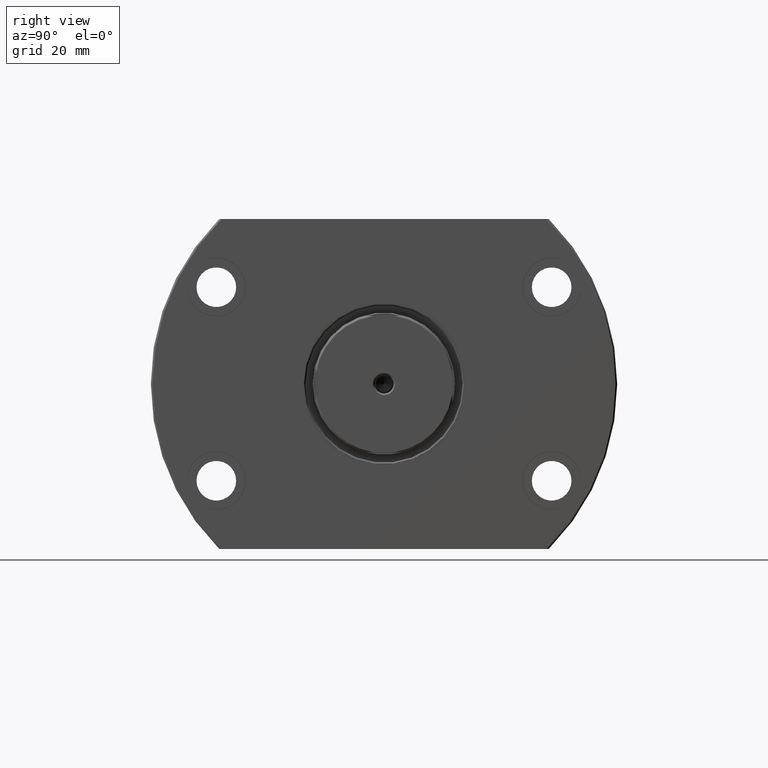
[diagram: clean part render]
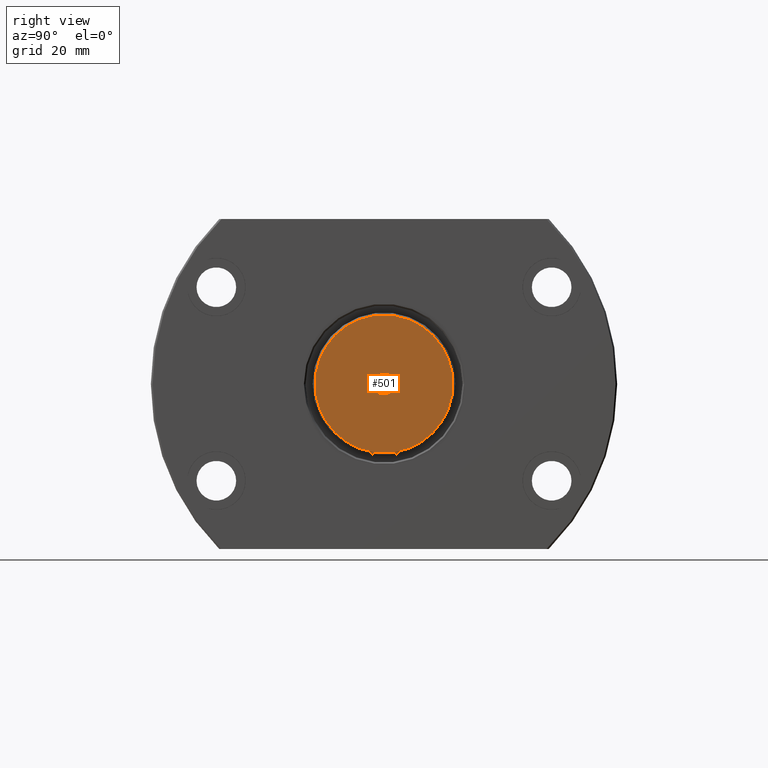
[diagram: same view with one face highlighted and labeled with its STEP entity id]
A machine part, right view. The second image highlights one B-rep face of the part: STEP entity #501.
In plain terms, the highlighted planar face has unit normal (-1, -0, 0).
Its self-contained STEP definition (entity closure, byte-faithful):
#5 = ORIENTED_EDGE ( 'NONE', *, *, #1656, .T. ) ;
#17 = EDGE_LOOP ( 'NONE', ( #2737, #5, #1064, #133, #1994, #2754, #3151, #2663 ) ) ;
#26 = LINE ( 'NONE', #2769, #490 ) ;
#35 = DIRECTION ( 'NONE',  ( 0.000000000000000000, -1.000000000000000000, 0.000000000000000000 ) ) ;
#55 = VERTEX_POINT ( 'NONE', #321 ) ;
#57 = DIRECTION ( 'NONE',  ( -1.000000000000000000, -1.069542322069065801E-17, -0.000000000000000000 ) ) ;
#76 = AXIS2_PLACEMENT_3D ( 'NONE', #735, #2782, #35 ) ;
#121 = EDGE_CURVE ( 'NONE', #433, #292, #26, .T. ) ;
#133 = ORIENTED_EDGE ( 'NONE', *, *, #2186, .T. ) ;
#199 = CARTESIAN_POINT ( 'NONE',  ( 144.0000000000000000, 1.540140943779454728E-15, 0.000000000000000000 ) ) ;
#240 = ORIENTED_EDGE ( 'NONE', *, *, #1620, .T. ) ;
#269 = EDGE_CURVE ( 'NONE', #2700, #1250, #2580, .T. ) ;
#292 = VERTEX_POINT ( 'NONE', #883 ) ;
#299 = DIRECTION ( 'NONE',  ( 1.453623156750132929E-14, 1.000000000000000000, -3.028381576562776770E-16 ) ) ;
#321 = CARTESIAN_POINT ( 'NONE',  ( 144.0000000000000568, 3.288236609491167695, 21.49999999999999289 ) ) ;
#349 = AXIS2_PLACEMENT_3D ( 'NONE', #199, #696, #1696 ) ;
#377 = EDGE_CURVE ( 'NONE', #2467, #292, #2050, .T. ) ;
#385 = DIRECTION ( 'NONE',  ( 0.000000000000000000, -1.000000000000000000, 0.000000000000000000 ) ) ;
#433 = VERTEX_POINT ( 'NONE', #1491 ) ;
#490 = VECTOR ( 'NONE', #760, 1000.000000000000000 ) ;
#501 = ADVANCED_FACE ( 'NONE', ( #2976, #752 ), #1703, .F. ) ;
#511 = CIRCLE ( 'NONE', #349, 21.74999999999994316 ) ;
#520 = EDGE_CURVE ( 'NONE', #433, #1250, #598, .T. ) ;
#536 = CARTESIAN_POINT ( 'NONE',  ( 144.0000000000000000, 21.49999999999761258, 3.288236609506725028 ) ) ;
#598 = CIRCLE ( 'NONE', #1280, 21.74999999999997158 ) ;
#696 = DIRECTION ( 'NONE',  ( 1.000000000000000000, 1.069542322069065801E-17, 0.000000000000000000 ) ) ;
#735 = CARTESIAN_POINT ( 'NONE',  ( 144.0000000000000000, 1.540140943779454728E-15, 0.000000000000000000 ) ) ;
#744 = EDGE_CURVE ( 'NONE', #2354, #1496, #864, .T. ) ;
#752 = FACE_OUTER_BOUND ( 'NONE', #17, .T. ) ;
#759 = DIRECTION ( 'NONE',  ( 1.000000000000000000, 1.069542322069065801E-17, 0.000000000000000000 ) ) ;
#760 = DIRECTION ( 'NONE',  ( 0.000000000000000000, -3.028381576562776770E-16, 1.000000000000000000 ) ) ;
#775 = CARTESIAN_POINT ( 'NONE',  ( 143.9999999999999147, -5.728219618697205640, 21.49999999999999645 ) ) ;
#843 = CARTESIAN_POINT ( 'NONE',  ( 144.0000000000000000, -2.386461311268812200E-12, 0.000000000000000000 ) ) ;
#864 = CIRCLE ( 'NONE', #2836, 3.500000000000542233 ) ;
#883 = CARTESIAN_POINT ( 'NONE',  ( 143.9999999999996305, -21.50000000000238387, 3.288236609475934991 ) ) ;
#922 = CIRCLE ( 'NONE', #1599, 21.74999999999997158 ) ;
#975 = DIRECTION ( 'NONE',  ( 0.000000000000000000, -1.000000000000000000, 0.000000000000000000 ) ) ;
#1060 = DIRECTION ( 'NONE',  ( 0.000000000000000000, -1.000000000000000000, 0.000000000000000000 ) ) ;
#1064 = ORIENTED_EDGE ( 'NONE', *, *, #2185, .F. ) ;
#1180 = CARTESIAN_POINT ( 'NONE',  ( 143.9999999999999432, -3.288236609491320017, -21.49999999999999289 ) ) ;
#1199 = CARTESIAN_POINT ( 'NONE',  ( 143.9999999999999432, -3.288236609491562490, 21.49999999999999289 ) ) ;
#1250 = VERTEX_POINT ( 'NONE', #1180 ) ;
#1280 = AXIS2_PLACEMENT_3D ( 'NONE', #3139, #1664, #385 ) ;
#1317 = DIRECTION ( 'NONE',  ( -1.000000000000000000, -1.069542322069065801E-17, 0.000000000000000000 ) ) ;
#1352 = DIRECTION ( 'NONE',  ( -1.453623156750132929E-14, -1.000000000000000000, 3.028381576562776770E-16 ) ) ;
#1404 = VERTEX_POINT ( 'NONE', #1575 ) ;
#1405 = DIRECTION ( 'NONE',  ( 0.000000000000000000, -1.000000000000000000, 0.000000000000000000 ) ) ;
#1481 = AXIS2_PLACEMENT_3D ( 'NONE', #1746, #1317, #2360 ) ;
#1491 = CARTESIAN_POINT ( 'NONE',  ( 144.0000000000000000, -21.50000000000238032, -3.288236609475717831 ) ) ;
#1496 = VERTEX_POINT ( 'NONE', #2459 ) ;
#1575 = CARTESIAN_POINT ( 'NONE',  ( 144.0000000000003411, 21.49999999999760547, -3.288236609506932862 ) ) ;
#1599 = AXIS2_PLACEMENT_3D ( 'NONE', #2500, #759, #975 ) ;
#1620 = EDGE_CURVE ( 'NONE', #1496, #2354, #3163, .T. ) ;
#1646 = DIRECTION ( 'NONE',  ( -1.000000000000000000, -1.069542322069065801E-17, -0.000000000000000000 ) ) ;
#1656 = EDGE_CURVE ( 'NONE', #2700, #1404, #922, .T. ) ;
#1664 = DIRECTION ( 'NONE',  ( 1.000000000000000000, 1.069542322069065801E-17, 0.000000000000000000 ) ) ;
#1670 = VERTEX_POINT ( 'NONE', #536 ) ;
#1696 = DIRECTION ( 'NONE',  ( 0.000000000000000000, -1.000000000000000000, 0.000000000000000000 ) ) ;
#1703 = PLANE ( 'NONE',  #1481 ) ;
#1736 = ORIENTED_EDGE ( 'NONE', *, *, #744, .T. ) ;
#1746 = CARTESIAN_POINT ( 'NONE',  ( 144.0000000000000000, 8.673617379884035472E-16, 0.000000000000000000 ) ) ;
#1905 = AXIS2_PLACEMENT_3D ( 'NONE', #3171, #1646, #1405 ) ;
#1947 = CARTESIAN_POINT ( 'NONE',  ( 144.0000000000003411, 21.49999999999761258, 5.728219618694820880 ) ) ;
#1994 = ORIENTED_EDGE ( 'NONE', *, *, #2489, .F. ) ;
#2050 = CIRCLE ( 'NONE', #76, 21.75000000000000711 ) ;
#2111 = CARTESIAN_POINT ( 'NONE',  ( 144.0000000000000853, 5.728219618692435233, -21.49999999999999645 ) ) ;
#2116 = CARTESIAN_POINT ( 'NONE',  ( 144.0000000000000000, -3.500000000003050449, 4.286263797016549615E-16 ) ) ;
#2185 = EDGE_CURVE ( 'NONE', #1670, #1404, #2238, .T. ) ;
#2186 = EDGE_CURVE ( 'NONE', #1670, #55, #511, .T. ) ;
#2238 = LINE ( 'NONE', #1947, #2482 ) ;
#2354 = VERTEX_POINT ( 'NONE', #2116 ) ;
#2360 = DIRECTION ( 'NONE',  ( 1.069542322069065801E-17, -1.000000000000000000, 0.000000000000000000 ) ) ;
#2419 = DIRECTION ( 'NONE',  ( 0.000000000000000000, -6.056763153125553540E-16, -1.000000000000000000 ) ) ;
#2459 = CARTESIAN_POINT ( 'NONE',  ( 144.0000000000000000, 3.499999999998149924, 0.000000000000000000 ) ) ;
#2467 = VERTEX_POINT ( 'NONE', #1199 ) ;
#2482 = VECTOR ( 'NONE', #2419, 1000.000000000000000 ) ;
#2489 = EDGE_CURVE ( 'NONE', #2467, #55, #2528, .T. ) ;
#2500 = CARTESIAN_POINT ( 'NONE',  ( 144.0000000000000000, 1.540140943779454728E-15, 0.000000000000000000 ) ) ;
#2528 = LINE ( 'NONE', #775, #3176 ) ;
#2580 = LINE ( 'NONE', #2111, #2833 ) ;
#2657 = EDGE_LOOP ( 'NONE', ( #240, #1736 ) ) ;
#2663 = ORIENTED_EDGE ( 'NONE', *, *, #520, .T. ) ;
#2700 = VERTEX_POINT ( 'NONE', #2857 ) ;
#2737 = ORIENTED_EDGE ( 'NONE', *, *, #269, .F. ) ;
#2754 = ORIENTED_EDGE ( 'NONE', *, *, #377, .T. ) ;
#2769 = CARTESIAN_POINT ( 'NONE',  ( 143.9999999999996305, -21.50000000000238032, -5.728219618694824433 ) ) ;
#2782 = DIRECTION ( 'NONE',  ( 1.000000000000000000, 1.069542322069065801E-17, 0.000000000000000000 ) ) ;
#2833 = VECTOR ( 'NONE', #1352, 1000.000000000000000 ) ;
#2836 = AXIS2_PLACEMENT_3D ( 'NONE', #843, #57, #1060 ) ;
#2857 = CARTESIAN_POINT ( 'NONE',  ( 144.0000000000000568, 3.288236609491310691, -21.49999999999999645 ) ) ;
#2976 = FACE_BOUND ( 'NONE', #2657, .T. ) ;
#3139 = CARTESIAN_POINT ( 'NONE',  ( 144.0000000000000000, 1.540140943779454728E-15, 0.000000000000000000 ) ) ;
#3151 = ORIENTED_EDGE ( 'NONE', *, *, #121, .F. ) ;
#3163 = CIRCLE ( 'NONE', #1905, 3.500000000000542233 ) ;
#3171 = CARTESIAN_POINT ( 'NONE',  ( 144.0000000000000000, -2.386461311268812200E-12, 0.000000000000000000 ) ) ;
#3176 = VECTOR ( 'NONE', #299, 1000.000000000000000 ) ;